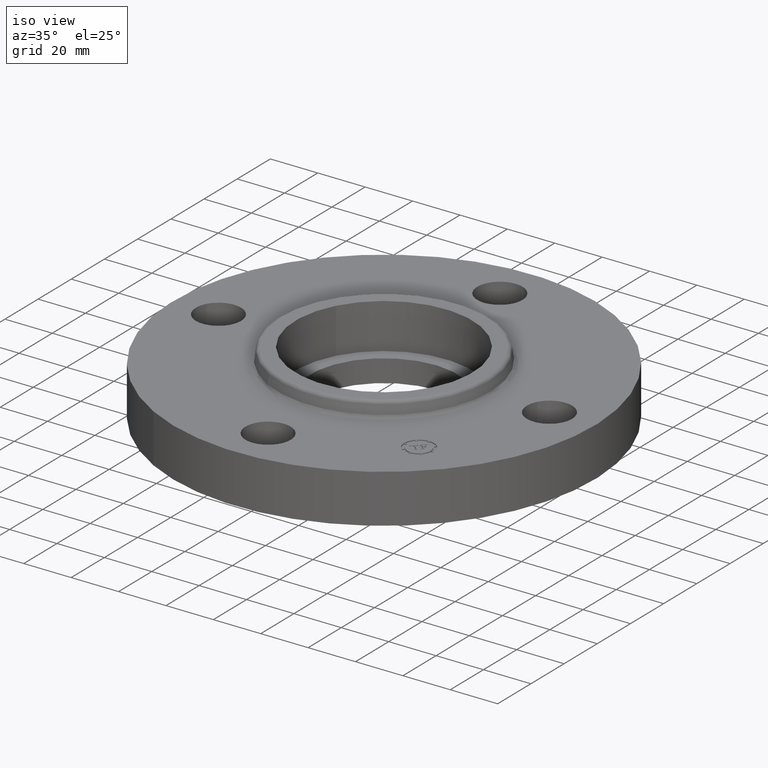
[diagram: clean part render]
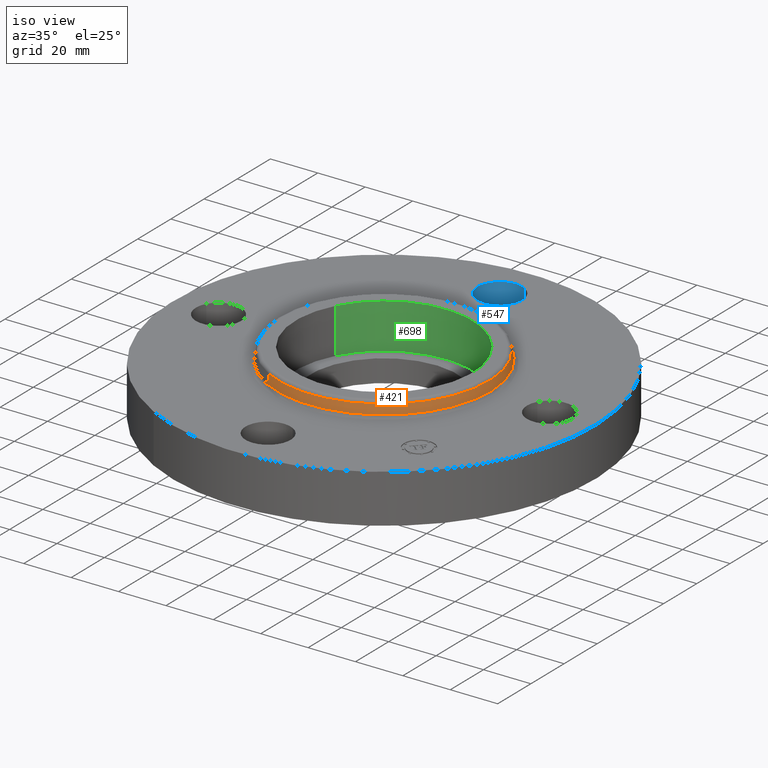
[diagram: same view with three faces highlighted in distinct colors, each labeled with its STEP entity id]
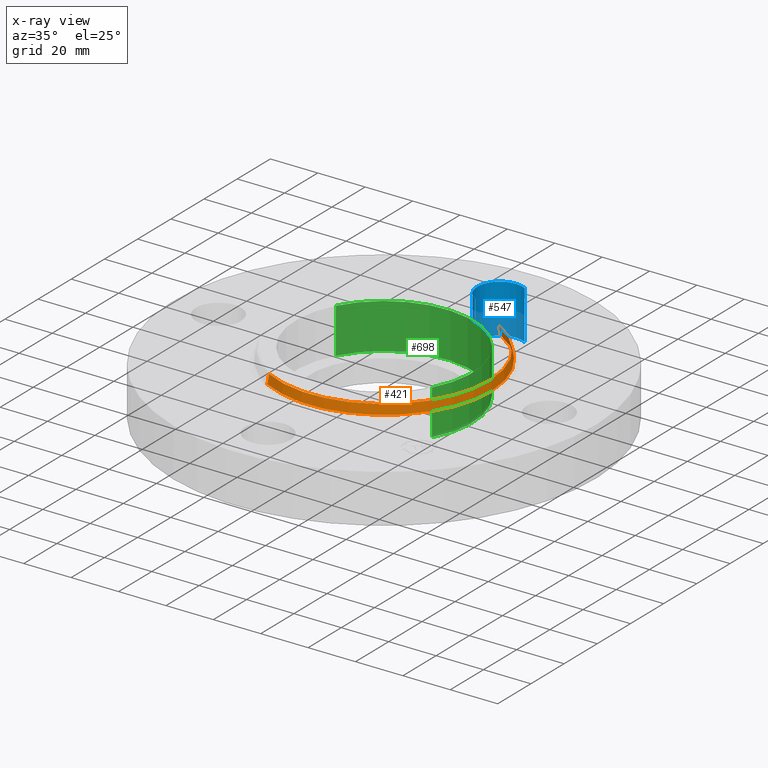
[diagram: x-ray of the same camera — body ghosted, the three highlighted faces saturated]
A machine part, iso view with three faces highlighted in distinct colors.
The next image is the same camera in x-ray (body ghosted, the three faces saturated) — at least one of them is partly hidden behind the body in this view.
Their STEP definitions:

[orange] entity #421 — the highlighted conical surface has half-angle 10 deg.
#357=AXIS2_PLACEMENT_3D('Circle Axis2P3D',#355,#356,$) ;
#394=AXIS2_PLACEMENT_3D('Cone Axis2P3D',#391,#392,#393) ;
#405=AXIS2_PLACEMENT_3D('Circle Axis2P3D',#403,#404,$) ;
#352=CARTESIAN_POINT('Vertex',(0.849186087031,1.55442470576,0.859581109343)) ;
#355=CARTESIAN_POINT('Axis2P3D Location',(0.,0.,0.859581109343)) ;
#359=CARTESIAN_POINT('Vertex',(-0.849186087031,-1.55442470576,0.859581109343)) ;
#391=CARTESIAN_POINT('Axis2P3D Location',(0.,0.,1.01041889066)) ;
#396=CARTESIAN_POINT('Line Origine',(0.842810501507,1.54275427474,0.935000000004)) ;
#400=CARTESIAN_POINT('Vertex',(0.836434915982,1.53108384372,1.01041889066)) ;
#403=CARTESIAN_POINT('Axis2P3D Location',(0.,0.,1.01041889066)) ;
#407=CARTESIAN_POINT('Vertex',(-0.836434915982,-1.53108384372,1.01041889066)) ;
#410=CARTESIAN_POINT('Line Origine',(-0.842810501507,-1.54275427474,0.935000000004)) ;
#356=DIRECTION('Axis2P3D Direction',(0.,0.,-0.0393700787402)) ;
#392=DIRECTION('Axis2P3D Direction',(0.,0.,-0.0393700787402)) ;
#393=DIRECTION('Axis2P3D XDirection',(-0.0188750212049,-0.0345504945626,0.)) ;
#397=DIRECTION('Vector Direction',(0.00327761303565,0.00599963041829,-0.03877195878)) ;
#404=DIRECTION('Axis2P3D Direction',(0.,0.,-0.0393700787402)) ;
#411=DIRECTION('Vector Direction',(-0.00327761303565,-0.00599963041829,-0.03877195878)) ;
#398=VECTOR('Line Direction',#397,0.0393700787402) ;
#412=VECTOR('Line Direction',#411,0.0393700787402) ;
#416=ORIENTED_EDGE('',*,*,#361,.F.) ;
#417=ORIENTED_EDGE('',*,*,#402,.T.) ;
#418=ORIENTED_EDGE('',*,*,#409,.T.) ;
#419=ORIENTED_EDGE('',*,*,#414,.F.) ;
#421=ADVANCED_FACE('PartBody',(#420),#395,.T.) ;
#358=CIRCLE('generated circle',#357,1.7712575127) ;
#406=CIRCLE('generated circle',#405,1.74466074214) ;
#395=CONICAL_SURFACE('Cone',#394,1.74466074214,0.174532925199) ;
#361=EDGE_CURVE('',#353,#360,#358,.T.) ;
#402=EDGE_CURVE('',#353,#401,#399,.F.) ;
#409=EDGE_CURVE('',#401,#408,#406,.T.) ;
#414=EDGE_CURVE('',#360,#408,#413,.F.) ;
#415=EDGE_LOOP('',(#416,#417,#418,#419)) ;
#420=FACE_OUTER_BOUND('',#415,.T.) ;
#399=LINE('Line',#396,#398) ;
#413=LINE('Line',#410,#412) ;
#353=VERTEX_POINT('',#352) ;
#360=VERTEX_POINT('',#359) ;
#401=VERTEX_POINT('',#400) ;
#408=VERTEX_POINT('',#407) ;

[blue] entity #547 — the highlighted cylindrical surface (edge-blend (fillet) strip) has radius 9.525 mm, axis along (0, 0, -1).
#274=AXIS2_PLACEMENT_3D('Circle Axis2P3D',#272,#273,$) ;
#508=AXIS2_PLACEMENT_3D('Cylinder Axis2P3D',#505,#506,#507) ;
#538=AXIS2_PLACEMENT_3D('Circle Axis2P3D',#536,#537,$) ;
#272=CARTESIAN_POINT('Axis2P3D Location',(-6.2941777774E-016,2.75000000001,0.)) ;
#276=CARTESIAN_POINT('Vertex',(-0.179784576977,2.4209065393,0.)) ;
#278=CARTESIAN_POINT('Vertex',(0.179784576977,3.07909346072,0.)) ;
#505=CARTESIAN_POINT('Axis2P3D Location',(-5.0516680465E-016,2.75000000001,0.806062992129)) ;
#510=CARTESIAN_POINT('Line Origine',(0.179784576977,3.07909346072,0.405000000002)) ;
#514=CARTESIAN_POINT('Vertex',(0.179784576977,3.07909346072,0.810000000003)) ;
#517=CARTESIAN_POINT('Line Origine',(-0.179784576977,2.4209065393,0.405000000002)) ;
#521=CARTESIAN_POINT('Vertex',(-0.179784576977,2.4209065393,0.810000000003)) ;
#536=CARTESIAN_POINT('Axis2P3D Location',(-5.0516680465E-016,2.75000000001,0.810000000003)) ;
#273=DIRECTION('Axis2P3D Direction',(0.,0.,-0.0393700787402)) ;
#506=DIRECTION('Axis2P3D Direction',(0.,0.,-0.0393700787402)) ;
#507=DIRECTION('Axis2P3D XDirection',(-0.0188750212049,-0.0345504945626,-0.)) ;
#511=DIRECTION('Vector Direction',(0.,0.,-0.0393700787402)) ;
#518=DIRECTION('Vector Direction',(0.,0.,-0.0393700787402)) ;
#537=DIRECTION('Axis2P3D Direction',(0.,0.,-0.0393700787402)) ;
#512=VECTOR('Line Direction',#511,0.0393700787402) ;
#519=VECTOR('Line Direction',#518,0.0393700787402) ;
#542=ORIENTED_EDGE('',*,*,#523,.F.) ;
#543=ORIENTED_EDGE('',*,*,#280,.T.) ;
#544=ORIENTED_EDGE('',*,*,#516,.T.) ;
#545=ORIENTED_EDGE('',*,*,#540,.F.) ;
#547=ADVANCED_FACE('PartBody',(#546),#509,.F.) ;
#275=CIRCLE('generated circle',#274,0.375000000002) ;
#539=CIRCLE('generated circle',#538,0.375000000002) ;
#509=CYLINDRICAL_SURFACE('generated cylinder',#508,0.375000000002) ;
#280=EDGE_CURVE('',#277,#279,#275,.T.) ;
#516=EDGE_CURVE('',#279,#515,#513,.F.) ;
#523=EDGE_CURVE('',#277,#522,#520,.F.) ;
#540=EDGE_CURVE('',#522,#515,#539,.T.) ;
#541=EDGE_LOOP('',(#542,#543,#544,#545)) ;
#546=FACE_OUTER_BOUND('',#541,.T.) ;
#513=LINE('Line',#510,#512) ;
#520=LINE('Line',#517,#519) ;
#277=VERTEX_POINT('',#276) ;
#279=VERTEX_POINT('',#278) ;
#515=VERTEX_POINT('',#514) ;
#522=VERTEX_POINT('',#521) ;

[green] entity #698 — the highlighted cylindrical surface (partial cylindrical patch) has radius 37.338 mm, axis along (0, 0, -1).
#42=AXIS2_PLACEMENT_3D('Circle Axis2P3D',#40,#41,$) ;
#488=AXIS2_PLACEMENT_3D('Circle Axis2P3D',#486,#487,$) ;
#680=AXIS2_PLACEMENT_3D('Cylinder Axis2P3D',#677,#678,#679) ;
#40=CARTESIAN_POINT('Axis2P3D Location',(1.39870617276E-016,1.04902962957E-016,0.310000000001)) ;
#44=CARTESIAN_POINT('Vertex',(-1.29004636598,0.704755541751,0.310000000001)) ;
#46=CARTESIAN_POINT('Vertex',(1.29004636598,-0.704755541751,0.310000000001)) ;
#486=CARTESIAN_POINT('Axis2P3D Location',(2.44773580232E-016,-2.79741234551E-016,1.06)) ;
#490=CARTESIAN_POINT('Vertex',(-1.29004636598,0.704755541751,1.06)) ;
#492=CARTESIAN_POINT('Vertex',(1.29004636598,-0.704755541751,1.06)) ;
#677=CARTESIAN_POINT('Axis2P3D Location',(1.39870617276E-016,1.04902962957E-016,1.05606299213)) ;
#682=CARTESIAN_POINT('Line Origine',(-1.29004636598,0.704755541751,0.685000000003)) ;
#687=CARTESIAN_POINT('Line Origine',(1.29004636598,-0.704755541751,0.685000000003)) ;
#41=DIRECTION('Axis2P3D Direction',(0.,0.,-0.0393700787402)) ;
#487=DIRECTION('Axis2P3D Direction',(0.,0.,-0.0393700787402)) ;
#678=DIRECTION('Axis2P3D Direction',(0.,0.,-0.0393700787402)) ;
#679=DIRECTION('Axis2P3D XDirection',(0.0345504945626,-0.0188750212049,0.)) ;
#683=DIRECTION('Vector Direction',(0.,0.,-0.0393700787402)) ;
#688=DIRECTION('Vector Direction',(0.,0.,-0.0393700787402)) ;
#684=VECTOR('Line Direction',#683,0.0393700787402) ;
#689=VECTOR('Line Direction',#688,0.0393700787402) ;
#693=ORIENTED_EDGE('',*,*,#494,.F.) ;
#694=ORIENTED_EDGE('',*,*,#686,.F.) ;
#695=ORIENTED_EDGE('',*,*,#48,.T.) ;
#696=ORIENTED_EDGE('',*,*,#691,.T.) ;
#698=ADVANCED_FACE('PartBody',(#697),#681,.F.) ;
#43=CIRCLE('generated circle',#42,1.47000000001) ;
#489=CIRCLE('generated circle',#488,1.47000000001) ;
#681=CYLINDRICAL_SURFACE('generated cylinder',#680,1.47000000001) ;
#48=EDGE_CURVE('',#45,#47,#43,.T.) ;
#494=EDGE_CURVE('',#491,#493,#489,.T.) ;
#686=EDGE_CURVE('',#45,#491,#685,.F.) ;
#691=EDGE_CURVE('',#47,#493,#690,.F.) ;
#692=EDGE_LOOP('',(#693,#694,#695,#696)) ;
#697=FACE_OUTER_BOUND('',#692,.T.) ;
#685=LINE('Line',#682,#684) ;
#690=LINE('Line',#687,#689) ;
#45=VERTEX_POINT('',#44) ;
#47=VERTEX_POINT('',#46) ;
#491=VERTEX_POINT('',#490) ;
#493=VERTEX_POINT('',#492) ;